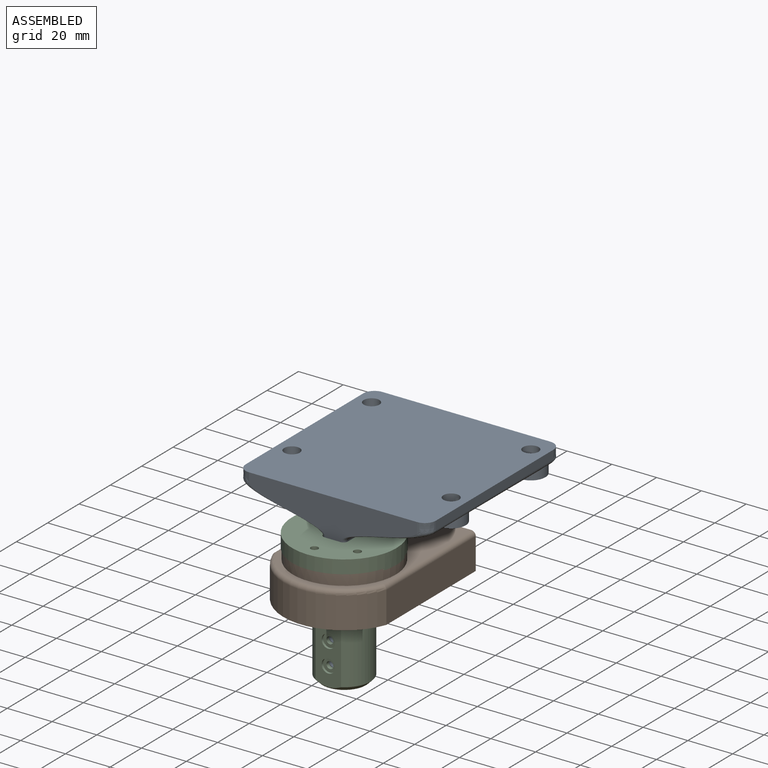
[diagram: assembled view]
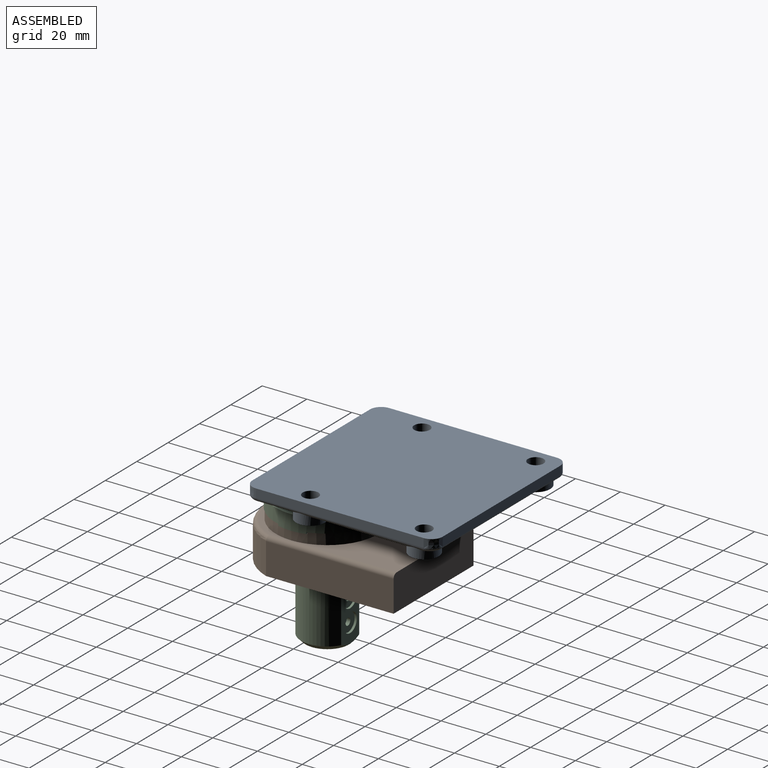
[diagram: assembled view, second angle]
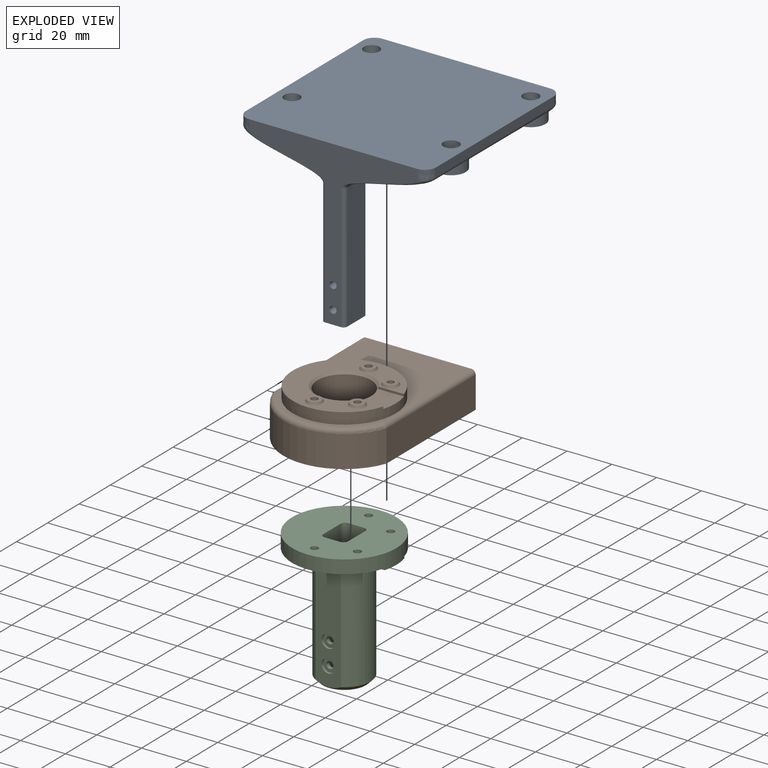
[diagram: exploded view]
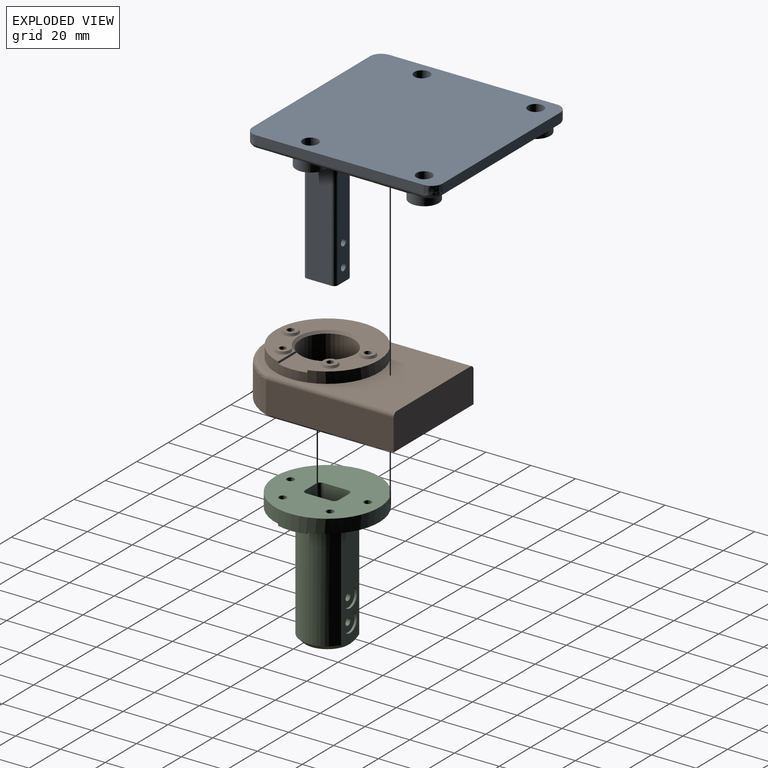
[diagram: exploded view, second angle]
ASSEMBLY  parts=3 mates=2
PART A: 32 faces, bbox 85.4x85.4x73.4 mm
  f0: bspline ~85x85mm, area 6972.3mm2, adj f1,f2,f3,f4,f5,f6,f7,f8
  f1: plane 56.37x11.37mm, normal (-1,0,0), area 616mm2, adj f0,f2,f8,f9
  f2: cylinder r=1.7mm len=56mm, axis (0,0,1), area 149.5mm2, adj f0,f1,f3,f9
  f3: plane 75.43x73.43mm, normal (0,-1,0), area 1189.2mm2, adj f0,f2,f4,f9,f10,f11,f13,f14
  f4: cylinder r=1.7mm len=56mm, axis (0,0,1), area 149.5mm2, adj f0,f3,f5,f9
  f5: plane 56.37x11.37mm, normal (1,0,0), area 616mm2, adj f0,f4,f6,f9
  f6: cylinder r=1.7mm len=56mm, axis (0,0,1), area 149.5mm2, adj f0,f5,f7,f9
  f7: plane 56.45x7.45mm, normal (0,1,0), area 376.9mm2, adj f0,f6,f8,f9,f10,f11
  f8: cylinder r=1.7mm len=56mm, axis (0,0,1), area 149.5mm2, adj f0,f1,f7,f9
  f9: plane 14.4x10.4mm, normal (0,0,-1), area 147.3mm2, adj f1,f2,f3,f4,f5,f6,f7,f8
  f10: cylinder r=1.55mm len=14.4mm, axis (0,-1,0), area 140.2mm2, adj f3,f7
  f11: cylinder r=1.55mm len=14.4mm, axis (0,-1,0), area 140.2mm2, adj f3,f7
  f12: plane 75x4mm, normal (-1,0,0), area 300mm2, adj f0,f13,f18,f19
  f13: extruded ~5x5mm, area 31.4mm2, adj f0,f3,f12,f19
  f14: extruded ~5x5mm, area 31.4mm2, adj f0,f3,f15,f19
  f15: plane 75x4mm, normal (1,0,0), area 300mm2, adj f0,f14,f16,f19
  f16: extruded ~5x5mm, area 31.4mm2, adj f0,f15,f17,f19
  f17: plane 75x4mm, normal (0,1,0), area 300mm2, adj f0,f16,f18,f19
  f18: extruded ~5x5mm, area 31.4mm2, adj f0,f12,f17,f19
  f19: plane 85x85mm, normal (0,0,1), area 7049.5mm2, adj f3,f12,f13,f14,f15,f16,f17,f18
  f20: cylinder r=3.5mm len=9.5mm, axis (0,0,1), area 208.9mm2, adj f19,f30
  f21: cylinder r=3.5mm len=9.5mm, axis (0,0,1), area 208.9mm2, adj f19,f26
  f22: cylinder r=3.5mm len=9.5mm, axis (0,0,1), area 208.9mm2, adj f19,f28
  f23: cylinder r=3.5mm len=9.5mm, axis (0,0,1), area 208.9mm2, adj f19,f24
  f24: plane 13x13mm, normal (0,0,-1), area 94.2mm2, adj f23,f25
  f25: cylinder r=6.5mm len=13mm, axis (0,0,-1), area 77.6mm2, adj f0,f24
  f26: plane 13x13mm, normal (0,0,-1), area 94.2mm2, adj f21,f27
  f27: cylinder r=6.5mm len=13mm, axis (0,0,-1), area 77.5mm2, adj f0,f26
  f28: plane 13x13mm, normal (0,0,-1), area 94.2mm2, adj f22,f29
  f29: cylinder r=6.5mm len=13mm, axis (0,0,-1), area 107.9mm2, adj f0,f28
  f30: plane 13x13mm, normal (0,0,-1), area 94.2mm2, adj f20,f31
  f31: cylinder r=6.5mm len=13mm, axis (0,0,-1), area 107.8mm2, adj f0,f30
PART B: 28 faces, bbox 55.2x77x22 mm
  f0: plane 57x14mm, normal (1,0,0), area 798mm2, adj f1,f3,f5,f24
  f1: plane 51x16mm, normal (0,1,0), area 814.3mm2, adj f0,f2,f4,f5,f24,f26
  f2: plane 57x14mm, normal (-1,0,0), area 798mm2, adj f1,f3,f5,f26
  f3: cylinder r=27.23mm len=51mm, axis (0,0,-1), area 924.4mm2, adj f0,f2,f5,f25
  f4: plane 72.68x47mm, normal (0,0,1), area 1546.8mm2, adj f1,f6,f24,f25,f26
  f5: plane 74.68x51mm, normal (0,0,-1), area 3080.8mm2, adj f0,f1,f2,f3,f9,f12,f14,f16
  f6: cylinder r=23mm len=46mm, axis (0,0,-1), area 709.3mm2, adj f4,f7,f8,f10,f11
  f7: plane 12.02x1.03mm, normal (0,-1,0), area 11.4mm2, adj f6,f10,f11,f23
  f8: plane 12.02x1.03mm, normal (0,1,0), area 11.4mm2, adj f6,f10,f11,f23
  f9: cylinder r=12mm len=24mm, axis (0,0,-1), area 1508mm2, adj f5,f11,f23
  f10: plane 46x45.05mm, normal (0,0,1), area 841mm2, adj f6,f7,f8,f20,f21,f22,f23,f27
  f11: plane 13.1x12.95mm, normal (0,0,1), area 148.2mm2, adj f6,f7,f8,f9
  f12: cylinder r=1.55mm len=22mm, axis (0,0,-1), area 214.3mm2, adj f5,f13
  f13: plane 6x6mm, normal (0,0,1), area 20.7mm2, adj f12,f20
  f14: cylinder r=1.5mm len=22mm, axis (0,0,-1), area 207.3mm2, adj f5,f15
  f15: plane 6.07x6.07mm, normal (0,0,1), area 21.9mm2, adj f14,f22
  f16: cylinder r=1.5mm len=22mm, axis (0,0,-1), area 207.3mm2, adj f5,f17
  f17: plane 6.07x6.07mm, normal (0,0,1), area 21.9mm2, adj f16,f21
  f18: cylinder r=1.55mm len=22mm, axis (0,0,-1), area 214.3mm2, adj f5,f19
  f19: plane 6x6mm, normal (0,0,1), area 20.7mm2, adj f18,f27
  f20: cone r=3mm half-angle=26.6deg, axis (0,0,-1), area 22.8mm2, adj f10,f13
  f21: cone r=3.04mm half-angle=26.6deg, axis (0,0,-1), area 23.1mm2, adj f10,f17
  f22: cone r=3.04mm half-angle=26.6deg, axis (0,0,-1), area 23.1mm2, adj f10,f15
  f23: cone r=12mm half-angle=45deg, axis (0,0,1), area 91.5mm2, adj f7,f8,f9,f10
  f24: cylinder r=2mm len=57mm, axis (0,-1,0), area 178.7mm2, adj f0,f1,f4,f25
  f25: torus R=25.23mm, axis (0,0,1), area 201.1mm2, adj f3,f4,f24,f26
  f26: cylinder r=2mm len=57mm, axis (0,1,0), area 178.7mm2, adj f1,f2,f4,f25
  f27: cone r=3.5mm half-angle=26.6deg, axis (0,0,-1), area 22.8mm2, adj f10,f19
PART C: 48 faces, bbox 46.6x46.6x59 mm
  f0: cylinder r=11.7mm len=51mm, axis (0,0,1), area 1263.6mm2, adj f2,f10,f34,f35
  f1: cylinder r=11.7mm len=51mm, axis (0,0,1), area 1253.1mm2, adj f2,f10,f11,f12,f13,f34,f35
  f2: cone r=11.7mm half-angle=45deg, axis (0,0,1), area 157.3mm2, adj f0,f1,f4,f34,f35
  f3: plane 46.6x46.6mm, normal (0,0,1), area 1509.8mm2, adj f9,f14,f16,f18,f20,f26,f27,f28
  f4: plane 19.4x19.4mm, normal (0,0,-1), area 134mm2, adj f2,f26,f27,f28,f29,f30,f31,f32
  f5: cylinder r=3.84mm len=7.67mm, axis (0,0,-1), area 48.2mm2, adj f21,f22
  f6: cylinder r=3.84mm len=7.67mm, axis (0,0,-1), area 48.2mm2, adj f19,f23
  f7: cylinder r=3.84mm len=7.67mm, axis (0,0,-1), area 48.2mm2, adj f17,f25
  f8: cylinder r=3.84mm len=7.67mm, axis (0,0,-1), area 48.2mm2, adj f15,f24
  f9: cylinder r=23.3mm len=46.6mm, axis (0,0,-1), area 888.5mm2, adj f3,f10,f11,f12,f13
  f10: plane 46.6x45.75mm, normal (0,0,-1), area 913.7mm2, adj f0,f1,f9,f11,f12,f22,f23,f24
  f11: plane 12.56x0.8mm, normal (0,-1,0), area 10mm2, adj f1,f9,f10,f13
  f12: plane 12.56x0.8mm, normal (0,1,0), area 10mm2, adj f1,f9,f10,f13
  f13: plane 13.41x12.5mm, normal (0,0,-1), area 148.8mm2, adj f1,f9,f11,f12
  f14: cylinder r=1.65mm len=3.3mm, axis (0,0,-1), area 31.1mm2, adj f3,f15
  f15: plane 7.67x7.67mm, normal (0,0,-1), area 37.7mm2, adj f8,f14
  f16: cylinder r=1.65mm len=3.3mm, axis (0,0,-1), area 31.1mm2, adj f3,f17
  f17: plane 7.67x7.67mm, normal (0,0,-1), area 37.7mm2, adj f7,f16
  f18: cylinder r=1.65mm len=3.3mm, axis (0,0,-1), area 31.1mm2, adj f3,f19
  f19: plane 7.67x7.67mm, normal (0,0,-1), area 37.7mm2, adj f6,f18
  f20: cylinder r=1.65mm len=3.3mm, axis (0,0,-1), area 31.1mm2, adj f3,f21
  f21: plane 7.67x7.67mm, normal (0,0,-1), area 37.7mm2, adj f5,f20
  f22: cone r=4.34mm half-angle=26.6deg, axis (0,0,-1), area 28.7mm2, adj f5,f10
  f23: cone r=4.34mm half-angle=26.6deg, axis (0,0,-1), area 28.7mm2, adj f6,f10
  f24: cone r=4.34mm half-angle=26.6deg, axis (0,0,-1), area 28.7mm2, adj f8,f10
  f25: cone r=4.34mm half-angle=26.6deg, axis (0,0,-1), area 28.7mm2, adj f7,f10
  f26: plane 59x11mm, normal (-1,0,0), area 649mm2, adj f3,f4,f30,f33
  f27: plane 59x7mm, normal (0,-1,0), area 397.9mm2, adj f3,f4,f30,f31,f42,f45
  f28: plane 59x11mm, normal (1,0,0), area 649mm2, adj f3,f4,f31,f32
  f29: plane 59x7mm, normal (0,1,0), area 397.9mm2, adj f3,f4,f32,f33,f36,f39
  f30: cylinder r=2mm len=59mm, axis (0,0,1), area 185.4mm2, adj f3,f4,f26,f27
  f31: cylinder r=2mm len=59mm, axis (0,0,-1), area 185.4mm2, adj f3,f4,f27,f28
  f32: cylinder r=2mm len=59mm, axis (0,0,1), area 185.4mm2, adj f3,f4,f28,f29
  f33: cylinder r=2mm len=59mm, axis (0,0,-1), area 185.4mm2, adj f3,f4,f26,f29
  f34: plane 52.51x11.48mm, normal (0,-1,0), area 539.4mm2, adj f0,f1,f2,f10,f38,f41
  f35: plane 52.51x11.48mm, normal (0,1,0), area 482.4mm2, adj f0,f1,f2,f10,f44,f47
  f36: cylinder r=1.55mm len=3.1mm, axis (0,-1,0), area 16.6mm2, adj f29,f37
  f37: plane 6x6mm, normal (0,-1,0), area 20.7mm2, adj f36,f38
  f38: cylinder r=3mm len=6mm, axis (0,-1,0), area 18.8mm2, adj f34,f37
  f39: cylinder r=1.55mm len=3.1mm, axis (0,-1,0), area 16.6mm2, adj f29,f40
  f40: plane 6x6mm, normal (0,-1,0), area 20.7mm2, adj f39,f41
  f41: cylinder r=3mm len=6mm, axis (0,-1,0), area 18.8mm2, adj f34,f40
  f42: cylinder r=1.55mm len=3.1mm, axis (0,1,0), area 16.6mm2, adj f27,f43
  f43: plane 8.5x8.5mm, normal (0,1,0), area 49.2mm2, adj f42,f44
  f44: cylinder r=4.25mm len=8.5mm, axis (0,1,0), area 26.7mm2, adj f35,f43
  f45: cylinder r=1.55mm len=3.1mm, axis (0,1,0), area 16.6mm2, adj f27,f46
  f46: plane 8.5x8.5mm, normal (0,1,0), area 49.2mm2, adj f45,f47
  f47: cylinder r=4.25mm len=8.5mm, axis (0,1,0), area 26.7mm2, adj f35,f46
PLACE A t=(9.21,-52.36,18.35)mm
PLACE B t=(9.21,-52.36,-8.48)mm
PLACE C t=(9.21,-52.36,15.31)mm
MATE cylindrical C.f9 <-> B.f9  axis (0,0,-1) through (9.21,-52.36,-40.69)mm
MATE slider A.f9 <-> C.f9  axis (0,0,-1) through (9.21,-52.36,-37.65)mm
